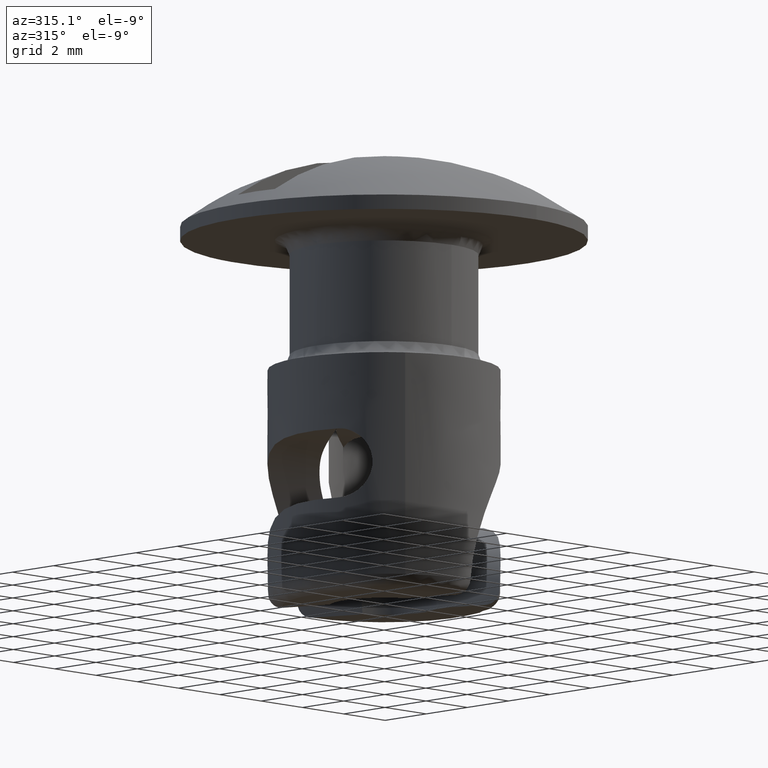
[diagram: clean part render]
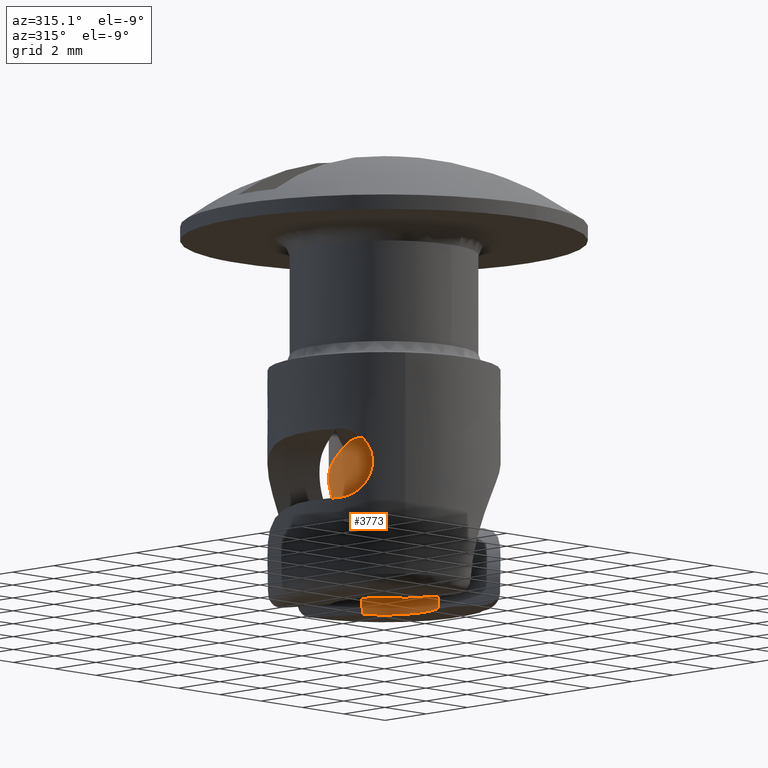
[diagram: same view with one face highlighted and labeled with its STEP entity id]
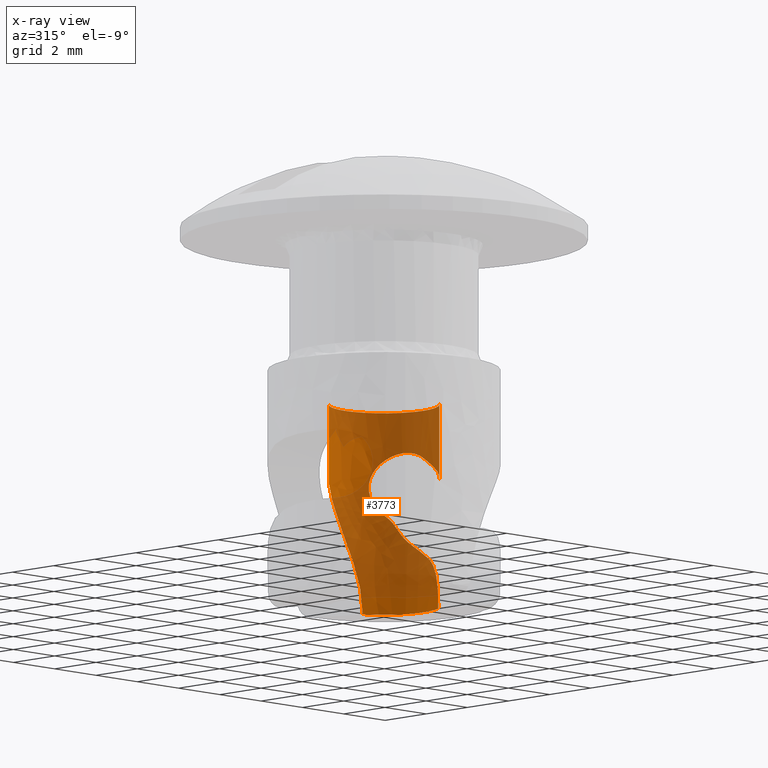
[diagram: x-ray of the same camera — body ghosted, the highlighted face saturated]
A machine part, auxiliary view. The second image highlights one B-rep face of the part: STEP entity #3773.
The next image is the same camera in x-ray: the body ghosted, the highlighted face saturated — about 77% of this face is hidden behind the body in this view.
In plain terms, the highlighted face is a freeform B-spline surface patch.
Its self-contained STEP definition (entity closure, byte-faithful):
#970=CARTESIAN_POINT('',(1.581969614668675,-1.052317508295498,-12.699992000000099));
#971=VERTEX_POINT('',#970);
#972=CARTESIAN_POINT('',(0.721534682210653,1.757665412519450,-12.699992000000041));
#973=VERTEX_POINT('',#972);
#974=CARTESIAN_POINT('',(1.581969614668675,-1.052317508295498,-12.699992000000099));
#975=CARTESIAN_POINT('',(1.669231942342806,-0.921213429950962,-12.699992000000121));
#976=CARTESIAN_POINT('',(1.765583235171748,-0.727886691350779,-12.699992000000080));
#977=CARTESIAN_POINT('',(1.866910511355629,-0.392537049895980,-12.699992000000060));
#978=CARTESIAN_POINT('',(1.910964826406038,-0.083282158192952,-12.699992000000060));
#979=CARTESIAN_POINT('',(1.891048394779727,0.254444447488404,-12.699992000000041));
#980=CARTESIAN_POINT('',(1.830433958105695,0.528392424569333,-12.699992000000050));
#981=CARTESIAN_POINT('',(1.728040417972602,0.812962627819043,-12.699992000000041));
#982=CARTESIAN_POINT('',(1.562362999764269,1.103549653220694,-12.699992000000041));
#983=CARTESIAN_POINT('',(1.351290970406985,1.344912328755811,-12.699992000000041));
#984=CARTESIAN_POINT('',(1.085700299239976,1.573537878380915,-12.699992000000091));
#985=CARTESIAN_POINT('',(0.879394015731295,1.692931858347210,-12.699991999999961));
#986=CARTESIAN_POINT('',(0.721534682210653,1.757665412519450,-12.699992000000041));
#987=B_SPLINE_CURVE_WITH_KNOTS('',3,(#974,#975,#976,#977,#978,#979,#980,#981,#982,#983,#984,#985,#986),.UNSPECIFIED.,.F.,.U.,(4,1,1,1,1,1,1,1,1,1,4),(0.000000014929798,0.472453560129736,0.643061539141212,1.049900947801158,1.404242304132250,1.653595062905611,1.889814577873628,2.309776921905266,2.650996383185895,2.847852648408573,3.359676945685826),.UNSPECIFIED.);
#988=EDGE_CURVE('',#971,#973,#987,.T.);
#1188=CARTESIAN_POINT('',(-0.041622970775787,1.899544031683340,-10.066299029696360));
#1189=VERTEX_POINT('',#1188);
#1219=CARTESIAN_POINT('',(-1.243232143669439,1.436828654406079,-8.389222069347559));
#1220=VERTEX_POINT('',#1219);
#1221=CARTESIAN_POINT('',(-1.243232143669439,1.436828654406079,-8.389222069347559));
#1222=CARTESIAN_POINT('',(-1.220298237899064,1.456612179207262,-8.413996473366078));
#1223=CARTESIAN_POINT('',(-1.131189909265769,1.530042271338140,-8.511258750751301));
#1224=CARTESIAN_POINT('',(-0.994546232570069,1.622947519662118,-8.662448590379023));
#1225=CARTESIAN_POINT('',(-0.791707719132302,1.732176635365334,-8.898754990515217));
#1226=CARTESIAN_POINT('',(-0.653580175312091,1.786347826586178,-9.074182174274505));
#1227=CARTESIAN_POINT('',(-0.535400160709188,1.823307128171714,-9.239846086566150));
#1228=CARTESIAN_POINT('',(-0.476002917281851,1.840129262416610,-9.326306152112075));
#1229=CARTESIAN_POINT('',(-0.421829643296131,1.852913996499768,-9.410148195393511));
#1230=CARTESIAN_POINT('',(-0.392338591690126,1.859189538477994,-9.457216956978835));
#1231=CARTESIAN_POINT('',(-0.383572863145312,1.860962256706624,-9.471403048786586));
#1232=CARTESIAN_POINT('',(-0.371839336067961,1.863387861668417,-9.490281209084541));
#1233=CARTESIAN_POINT('',(-0.345733796432961,1.868449880552485,-9.532988449006171));
#1234=CARTESIAN_POINT('',(-0.311526646937195,1.874449458117521,-9.590381590883114));
#1235=CARTESIAN_POINT('',(-0.205357826159514,1.890749371248174,-9.773652646119027));
#1236=CARTESIAN_POINT('',(-0.119009453791435,1.897721668655086,-9.930269844634594));
#1237=CARTESIAN_POINT('',(-0.041622970775787,1.899544031683340,-10.066299029696360));
#1238=B_SPLINE_CURVE_WITH_KNOTS('',3,(#1221,#1222,#1223,#1224,#1225,#1226,#1227,#1228,#1229,#1230,#1231,#1232,#1233,#1234,#1235,#1236,#1237),.UNSPECIFIED.,.F.,.U.,(4,1,1,1,1,1,1,1,1,1,1,1,1,1,4),(0.000001998847141,0.117393656196377,0.452787967727441,0.670795143230040,1.106806493107466,1.140353086974857,1.291280905283475,1.425436228704893,1.442205337182218,1.458975266713412,1.475745196244605,1.509283684196604,1.609899926132488,1.676983523515761,2.146537783823600),.UNSPECIFIED.);
#1239=EDGE_CURVE('',#1220,#1189,#1238,.T.);
#1431=CARTESIAN_POINT('',(1.880153510973105,-0.273902857187574,-10.868191261108100));
#1432=VERTEX_POINT('',#1431);
#1452=CARTESIAN_POINT('',(1.644551993323480,0.951548828389951,-9.800820635218260));
#1453=VERTEX_POINT('',#1452);
#1474=CARTESIAN_POINT('',(1.880153510973105,-0.273902857187574,-10.868191261108100));
#1475=CARTESIAN_POINT('',(1.894402274148290,-0.176369270615568,-10.796269891021799));
#1476=CARTESIAN_POINT('',(1.905487154352715,-0.011333645987658,-10.682269140579930));
#1477=CARTESIAN_POINT('',(1.890657560856122,0.219054359000835,-10.525375076117941));
#1478=CARTESIAN_POINT('',(1.868128198817627,0.353070594496566,-10.430492801936589));
#1479=CARTESIAN_POINT('',(1.840901395345409,0.473601520721546,-10.341092374903081));
#1480=CARTESIAN_POINT('',(1.817400871695427,0.557455401011523,-10.275461150183061));
#1481=CARTESIAN_POINT('',(1.778025426473391,0.671103714058288,-10.174683038282589));
#1482=CARTESIAN_POINT('',(1.743339275725278,0.756245554119326,-10.087764603297501));
#1483=CARTESIAN_POINT('',(1.695510724755720,0.859437757776103,-9.961346029264892));
#1484=CARTESIAN_POINT('',(1.664260733421967,0.917517930274709,-9.868711225741684));
#1485=CARTESIAN_POINT('',(1.644551993323480,0.951548828389951,-9.800820635218260));
#1486=B_SPLINE_CURVE_WITH_KNOTS('',3,(#1474,#1475,#1476,#1477,#1478,#1479,#1480,#1481,#1482,#1483,#1484,#1485),.UNSPECIFIED.,.F.,.U.,(4,1,1,1,1,1,1,1,1,4),(-0.000003136588939,0.366035178534501,0.601341380293010,0.836644345140903,0.862808464999355,1.058897319041666,1.163474935454804,1.333418166188719,1.437997514156109,1.673311580566655),.UNSPECIFIED.);
#1487=EDGE_CURVE('',#1432,#1453,#1486,.T.);
#1871=CARTESIAN_POINT('',(1.337555540859880,1.349424016061296,-9.236663782011080));
#1872=VERTEX_POINT('',#1871);
#1873=CARTESIAN_POINT('',(1.644551993323480,0.951548828389951,-9.800820635218260));
#1874=CARTESIAN_POINT('',(1.623676626865340,0.987549675000508,-9.729304855971204));
#1875=CARTESIAN_POINT('',(1.574094456478159,1.067215672991200,-9.589273930297347));
#1876=CARTESIAN_POINT('',(1.475572835843321,1.203409252644144,-9.397146002073370));
#1877=CARTESIAN_POINT('',(1.383590640471446,1.300721393832145,-9.290191964745999));
#1878=CARTESIAN_POINT('',(1.337555540859880,1.349424016061296,-9.236663782011080));
#1879=B_SPLINE_CURVE_WITH_KNOTS('',3,(#1873,#1874,#1875,#1876,#1877,#1878),.UNSPECIFIED.,.F.,.U.,(4,1,1,4),(0.508240037877227,0.668572443507250,0.834127675301968,1.0),.UNSPECIFIED.);
#1880=EDGE_CURVE('',#1453,#1872,#1879,.T.);
#1922=CARTESIAN_POINT('',(0.721534682210653,1.757665412519450,-12.699992000000041));
#1923=CARTESIAN_POINT('',(0.721893078104262,1.757518288348256,-12.465842787339920));
#1924=CARTESIAN_POINT('',(0.703208962487021,1.765489430723737,-12.235152465420180));
#1925=CARTESIAN_POINT('',(0.631763697135261,1.792297521591012,-11.779764361704609));
#1926=CARTESIAN_POINT('',(0.579070358472826,1.810971929699323,-11.555047065619650));
#1927=CARTESIAN_POINT('',(0.477514230202843,1.839351954496195,-11.221563814118751));
#1928=CARTESIAN_POINT('',(0.440060506308503,1.848799836685289,-11.111568579517730));
#1929=CARTESIAN_POINT('',(0.359109351089661,1.866213963965550,-10.895070518410000));
#1930=CARTESIAN_POINT('',(0.315540545807107,1.874201365426790,-10.788332696225520));
#1931=CARTESIAN_POINT('',(0.176354874722223,1.894118616936459,-10.472221033753939));
#1932=CARTESIAN_POINT('',(0.072309615124822,1.902040532219393,-10.266924644487750));
#1933=CARTESIAN_POINT('',(-0.041622970775807,1.899544031683340,-10.066299029696401));
#1934=B_SPLINE_CURVE_WITH_KNOTS('',3,(#1922,#1923,#1924,#1925,#1926,#1927,#1928,#1929,#1930,#1931,#1932,#1933),.UNSPECIFIED.,.F.,.U.,(4,2,2,2,2,4),(0.0,0.249999999999999,0.499999999999998,0.624999999999999,0.749999999999999,1.0),.UNSPECIFIED.);
#1935=EDGE_CURVE('',#973,#1189,#1934,.T.);
#2259=CARTESIAN_POINT('',(1.581969614668675,-1.052317508295498,-12.699992000000099));
#2260=CARTESIAN_POINT('',(1.581541494893709,-1.052961109176487,-12.524284104693180));
#2261=CARTESIAN_POINT('',(1.590871754706836,-1.039349024441612,-12.351777405140419));
#2262=CARTESIAN_POINT('',(1.617575882351366,-0.996859116659945,-12.097744450303891));
#2263=CARTESIAN_POINT('',(1.628589111568769,-0.978954749811389,-12.013863986403701));
#2264=CARTESIAN_POINT('',(1.647920629736982,-0.945791373513114,-11.889315714368831));
#2265=CARTESIAN_POINT('',(1.654831971246441,-0.933681271810889,-11.848012305365041));
#2266=CARTESIAN_POINT('',(1.669511879085197,-0.907171238511886,-11.765851839527580));
#2267=CARTESIAN_POINT('',(1.677300814017523,-0.892729911218603,-11.724906293725640));
#2268=CARTESIAN_POINT('',(1.717598924446168,-0.815309374504610,-11.523984381038961));
#2269=CARTESIAN_POINT('',(1.754699236423862,-0.736519562836848,-11.373442960477719));
#2270=CARTESIAN_POINT('',(1.799417823110237,-0.610581610163491,-11.199657176556871));
#2271=CARTESIAN_POINT('',(1.808289815705209,-0.583894057302647,-11.165518619618959));
#2272=CARTESIAN_POINT('',(1.825299334353548,-0.528324396318245,-11.099753747349110));
#2273=CARTESIAN_POINT('',(1.833461095422931,-0.499386461394751,-11.068031848254421));
#2274=CARTESIAN_POINT('',(1.856494997979865,-0.409013480818591,-10.976355801615190));
#2275=CARTESIAN_POINT('',(1.869936403125853,-0.344036229976121,-10.919877897251590));
#2276=CARTESIAN_POINT('',(1.880153510973105,-0.273902857187574,-10.868191261108100));
#2277=B_SPLINE_CURVE_WITH_KNOTS('',3,(#2259,#2260,#2261,#2262,#2263,#2264,#2265,#2266,#2267,#2268,#2269,#2270,#2271,#2272,#2273,#2274,#2275,#2276),.UNSPECIFIED.,.F.,.U.,(4,2,2,2,2,2,2,2,4),(0.0,0.250000000000000,0.375000000000001,0.437500000000000,0.500000000000000,0.750000000000002,0.812500000000002,0.875000000000002,1.0),.UNSPECIFIED.);
#2278=EDGE_CURVE('',#971,#1432,#2277,.T.);
#3484=CARTESIAN_POINT('',(1.898898489012795,-0.064687931060849,-7.380723263633880));
#3485=VERTEX_POINT('',#3484);
#3532=CARTESIAN_POINT('',(1.898898489012795,-0.064687931060849,-7.380723263633880));
#3533=CARTESIAN_POINT('',(1.900004434566848,-0.032223168208336,-7.355814857792301));
#3534=CARTESIAN_POINT('',(1.900307525130213,0.001420064449250,-7.332209167235465));
#3535=CARTESIAN_POINT('',(1.899024273410534,0.069839212817191,-7.288383787700714));
#3536=CARTESIAN_POINT('',(1.897445710660920,0.104774071133186,-7.268038505826809));
#3537=CARTESIAN_POINT('',(1.889519916180175,0.211721066284177,-7.211702487951833));
#3538=CARTESIAN_POINT('',(1.880004050891702,0.285932662725979,-7.180316131451990));
#3539=CARTESIAN_POINT('',(1.849979044706893,0.440170709074186,-7.131505610466021));
#3540=CARTESIAN_POINT('',(1.830081540346249,0.516978677039962,-7.115103575248042));
#3541=CARTESIAN_POINT('',(1.792414891669560,0.631557760878035,-7.102397475485963));
#3542=CARTESIAN_POINT('',(1.778552246320985,0.669646414940497,-7.100160081321121));
#3543=CARTESIAN_POINT('',(1.748072645336298,0.745598042220267,-7.099856437708848));
#3544=CARTESIAN_POINT('',(1.731449398335177,0.783408034618199,-7.101830724837188));
#3545=CARTESIAN_POINT('',(1.678934211014626,0.893174443150948,-7.113855046412547));
#3546=CARTESIAN_POINT('',(1.639964300694846,0.962643626485277,-7.129904687576733));
#3547=CARTESIAN_POINT('',(1.576196701361345,1.061671028806191,-7.165775718559369));
#3548=CARTESIAN_POINT('',(1.554199597576874,1.093565598171421,-7.179647057802282));
#3549=CARTESIAN_POINT('',(1.509582912547997,1.154374955010817,-7.210626758006792));
#3550=CARTESIAN_POINT('',(1.486863992991793,1.183444544138279,-7.227789859512674));
#3551=CARTESIAN_POINT('',(1.417759685270102,1.266956812861167,-7.284157778267338));
#3552=CARTESIAN_POINT('',(1.370054835866278,1.318009212877015,-7.328637714753149));
#3553=CARTESIAN_POINT('',(1.277079405754788,1.408285031486987,-7.427381280004904));
#3554=CARTESIAN_POINT('',(1.231465652322734,1.447972250350547,-7.481824717035876));
#3555=CARTESIAN_POINT('',(1.165952699159959,1.500445642464452,-7.571589858701466));
#3556=CARTESIAN_POINT('',(1.144656797464563,1.516703877307834,-7.602833781569048));
#3557=CARTESIAN_POINT('',(1.104197080725179,1.546408303891005,-7.666955040564640));
#3558=CARTESIAN_POINT('',(1.084926519818817,1.559940644054129,-7.699973098927027));
#3559=CARTESIAN_POINT('',(1.030517038916109,1.596858195948863,-7.802070112981605));
#3560=CARTESIAN_POINT('',(0.998658256541853,1.616645361555261,-7.874279232649578));
#3561=CARTESIAN_POINT('',(0.948273958758517,1.646704902993457,-8.028166796721513));
#3562=CARTESIAN_POINT('',(0.930725992367024,1.656455381524154,-8.107059741357132));
#3563=CARTESIAN_POINT('',(0.917922953153203,1.663562826604989,-8.228655649139874));
#3564=CARTESIAN_POINT('',(0.915931761816602,1.664652889604316,-8.270050240262664));
#3565=CARTESIAN_POINT('',(0.916781335432894,1.664185151410561,-8.351976497692323));
#3566=CARTESIAN_POINT('',(0.922362689174748,1.661124632241616,-8.433155717422196));
#3567=CARTESIAN_POINT('',(0.936891421984139,1.652982582318320,-8.512910151239995));
#3568=CARTESIAN_POINT('',(0.955647188106034,1.642210524232464,-8.591975818613259));
#3569=CARTESIAN_POINT('',(0.967161122951121,1.635492040393989,-8.631128830041600));
#3570=CARTESIAN_POINT('',(1.006544092208310,1.611771819487746,-8.744828638972010));
#3571=CARTESIAN_POINT('',(1.039464609995494,1.591102909432315,-8.816770448008940));
#3572=CARTESIAN_POINT('',(1.114876544025303,1.539202857135575,-8.953509132140455));
#3573=CARTESIAN_POINT('',(1.156419260312697,1.508610169986687,-9.016660983505304));
#3574=CARTESIAN_POINT('',(1.222298539487738,1.454918835547456,-9.104625988691430));
#3575=CARTESIAN_POINT('',(1.244865591600563,1.435711543245799,-9.132806043190705));
#3576=CARTESIAN_POINT('',(1.290968442291502,1.394402545021953,-9.186903543954804));
#3577=CARTESIAN_POINT('',(1.314278454867162,1.372496375064205,-9.212549172864367));
#3578=CARTESIAN_POINT('',(1.337555540859880,1.349424016061296,-9.236663782011080));
#3579=B_SPLINE_CURVE_WITH_KNOTS('',3,(#3532,#3533,#3534,#3535,#3536,#3537,#3538,#3539,#3540,#3541,#3542,#3543,#3544,#3545,#3546,#3547,#3548,#3549,#3550,#3551,#3552,#3553,#3554,#3555,#3556,#3557,#3558,#3559,#3560,#3561,#3562,#3563,#3564,#3565,#3566,#3567,#3568,#3569,#3570,#3571,#3572,#3573,#3574,#3575,#3576,#3577,#3578),.UNSPECIFIED.,.F.,.U.,(4,2,2,2,2,2,2,2,2,2,2,2,2,2,2,2,2,1,2,2,2,2,2,4),(0.0,0.031250000000000,0.062500000000000,0.125000000000000,0.187500000000001,0.218750000000001,0.250000000000001,0.312500000000001,0.343750000000000,0.375000000000000,0.437500000000000,0.500000000000000,0.531250000000000,0.562500000000000,0.624999999999999,0.687500000000000,0.718750000000000,0.750000000000000,0.781250000000001,0.812500000000001,0.875000000000000,0.937500000000000,0.968750000000000,1.0),.UNSPECIFIED.);
#3580=EDGE_CURVE('',#3485,#1872,#3579,.T.);
#3650=CARTESIAN_POINT('',(-1.243213990120598,1.436808607563307,-5.699991999824515));
#3651=VERTEX_POINT('',#3650);
#3667=CARTESIAN_POINT('',(1.900000000000000,0.0,-5.699992000000000));
#3668=VERTEX_POINT('',#3667);
#3669=CARTESIAN_POINT('',(1.900000000000000,0.0,-5.699992000000000));
#3670=CARTESIAN_POINT('',(1.900000000000017,1.899999999999981,-5.699991999959891));
#3671=CARTESIAN_POINT('',(5.176711E-014,1.899999999999940,-5.699991999872148));
#3672=CARTESIAN_POINT('',(-0.707893936701966,1.899999999999925,-5.699991999839458));
#3673=CARTESIAN_POINT('',(-1.243213990120599,1.436808607563307,-5.699991999824515));
#3681=(BOUNDED_CURVE()B_SPLINE_CURVE(2,(#3669,#3670,#3671,#3672,#3673),.UNSPECIFIED.,.F.,.U.)B_SPLINE_CURVE_WITH_KNOTS((3,2,3),(0.500000000000000,0.750000000000000,0.864114582615757),.UNSPECIFIED.)CURVE()GEOMETRIC_REPRESENTATION_ITEM()RATIONAL_B_SPLINE_CURVE((1.0,0.707106781186547,1.0,0.866306450336469,0.854663969619121))REPRESENTATION_ITEM(''));
#3682=EDGE_CURVE('',#3668,#3651,#3681,.T.);
#3684=CARTESIAN_POINT('',(1.243213990120687,-1.436808607563230,-5.699991999824590));
#3685=VERTEX_POINT('',#3684);
#3686=CARTESIAN_POINT('',(1.243213990120687,-1.436808607563230,-5.699991999824590));
#3687=CARTESIAN_POINT('',(1.899999999999964,-0.868517499270001,-5.699991999912294));
#3688=CARTESIAN_POINT('',(1.900000000000000,0.0,-5.699992000000000));
#3696=(BOUNDED_CURVE()B_SPLINE_CURVE(2,(#3686,#3687,#3688),.UNSPECIFIED.,.F.,.U.)B_SPLINE_CURVE_WITH_KNOTS((3,3),(0.364114582615767,0.500000000000000),.UNSPECIFIED.)CURVE()GEOMETRIC_REPRESENTATION_ITEM()RATIONAL_B_SPLINE_CURVE((0.854663969619119,0.840800330850090,1.0))REPRESENTATION_ITEM(''));
#3697=EDGE_CURVE('',#3685,#3668,#3696,.T.);
#3717=CARTESIAN_POINT('',(-1.243214474709803,1.436808188267322,-5.524991999999997));
#3718=CARTESIAN_POINT('',(0.193593713557519,2.680022662977126,-5.524991999999996));
#3719=CARTESIAN_POINT('',(1.436808188267322,1.243214474709803,-5.524991999999997));
#3720=CARTESIAN_POINT('',(2.680022662977126,-0.193593713557519,-5.524991999999996));
#3721=CARTESIAN_POINT('',(1.243214474709803,-1.436808188267322,-5.524991999999997));
#3722=CARTESIAN_POINT('',(-1.243214474709803,1.436808188267322,-12.879367000000110));
#3723=CARTESIAN_POINT('',(0.193593713557519,2.680022662977126,-12.879367000000105));
#3724=CARTESIAN_POINT('',(1.436808188267322,1.243214474709803,-12.879367000000110));
#3725=CARTESIAN_POINT('',(2.680022662977126,-0.193593713557519,-12.879367000000105));
#3726=CARTESIAN_POINT('',(1.243214474709803,-1.436808188267322,-12.879367000000110));
#3734=(BOUNDED_SURFACE()B_SPLINE_SURFACE(2,1,((#3717,#3722),(#3718,#3723),(#3719,#3724),(#3720,#3725),(#3721,#3726)),.UNSPECIFIED.,.F.,.F.,.U.)B_SPLINE_SURFACE_WITH_KNOTS((3,2,3),(2,2),(0.0,3.148023074035521,6.296046148071042),(0.0,7.354375000000109),.UNSPECIFIED.)GEOMETRIC_REPRESENTATION_ITEM()RATIONAL_B_SPLINE_SURFACE(((1.0,1.0),(0.707106781186548,0.707106781186548),(1.0,1.0),(0.707106781186548,0.707106781186548),(1.0,1.0)))REPRESENTATION_ITEM('')SURFACE());
#3735=ORIENTED_EDGE('',*,*,#3682,.T.);
#3736=CARTESIAN_POINT('',(-1.243213990120598,1.436808607563307,-5.699991999824515));
#3737=CARTESIAN_POINT('',(-1.243232143669439,1.436828654406079,-8.389222069347559));
#3738=QUASI_UNIFORM_CURVE('',1,(#3736,#3737),.UNSPECIFIED.,.F.,.U.);
#3739=EDGE_CURVE('',#3651,#1220,#3738,.T.);
#3740=ORIENTED_EDGE('',*,*,#3739,.T.);
#3741=ORIENTED_EDGE('',*,*,#1239,.T.);
#3742=ORIENTED_EDGE('',*,*,#1935,.F.);
#3743=ORIENTED_EDGE('',*,*,#988,.F.);
#3744=ORIENTED_EDGE('',*,*,#2278,.T.);
#3745=ORIENTED_EDGE('',*,*,#1487,.T.);
#3746=ORIENTED_EDGE('',*,*,#1880,.T.);
#3747=ORIENTED_EDGE('',*,*,#3580,.F.);
#3748=CARTESIAN_POINT('',(1.243232136394172,-1.436828645973672,-8.389222016354561));
#3749=VERTEX_POINT('',#3748);
#3750=CARTESIAN_POINT('',(1.898898489012795,-0.064687931060849,-7.380723263633880));
#3751=CARTESIAN_POINT('',(1.896249781264235,-0.141821682015046,-7.439675828602233));
#3752=CARTESIAN_POINT('',(1.883438312059896,-0.275435847115138,-7.527718007903461));
#3753=CARTESIAN_POINT('',(1.854133470178503,-0.419124210458641,-7.613706723354875));
#3754=CARTESIAN_POINT('',(1.818404979362566,-0.557246014580740,-7.696647966019422));
#3755=CARTESIAN_POINT('',(1.772720613436932,-0.693758083879211,-7.777837266490883));
#3756=CARTESIAN_POINT('',(1.714779123166385,-0.820180755066196,-7.857526999293455));
#3757=CARTESIAN_POINT('',(1.655333552115694,-0.935518186134308,-7.933698745086669));
#3758=CARTESIAN_POINT('',(1.583490609822961,-1.056977065529963,-8.019651828611218));
#3759=CARTESIAN_POINT('',(1.438042472197570,-1.251619635773746,-8.180771359830910));
#3760=CARTESIAN_POINT('',(1.319977569995245,-1.370632165715910,-8.306165739866481));
#3761=CARTESIAN_POINT('',(1.243232136394172,-1.436828645973672,-8.389222016354561));
#3762=B_SPLINE_CURVE_WITH_KNOTS('',3,(#3750,#3751,#3752,#3753,#3754,#3755,#3756,#3757,#3758,#3759,#3760,#3761),.UNSPECIFIED.,.F.,.U.,(4,1,1,1,1,1,1,1,1,4),(0.000001110279063,0.291214259219722,0.480503200068739,0.509627269470651,0.786276013201069,0.975560420690632,0.990128109893099,1.237661014222426,1.470626958438443,1.863764524264887),.UNSPECIFIED.);
#3763=EDGE_CURVE('',#3485,#3749,#3762,.T.);
#3764=ORIENTED_EDGE('',*,*,#3763,.T.);
#3765=CARTESIAN_POINT('',(1.243213990120687,-1.436808607563230,-5.699991999824590));
#3766=CARTESIAN_POINT('',(1.243232136394172,-1.436828645973672,-8.389222016354561));
#3767=QUASI_UNIFORM_CURVE('',1,(#3765,#3766),.UNSPECIFIED.,.F.,.U.);
#3768=EDGE_CURVE('',#3685,#3749,#3767,.T.);
#3769=ORIENTED_EDGE('',*,*,#3768,.F.);
#3770=ORIENTED_EDGE('',*,*,#3697,.T.);
#3771=EDGE_LOOP('',(#3735,#3740,#3741,#3742,#3743,#3744,#3745,#3746,#3747,#3764,#3769,#3770));
#3772=FACE_OUTER_BOUND('',#3771,.T.);
#3773=ADVANCED_FACE('',(#3772),#3734,.F.);